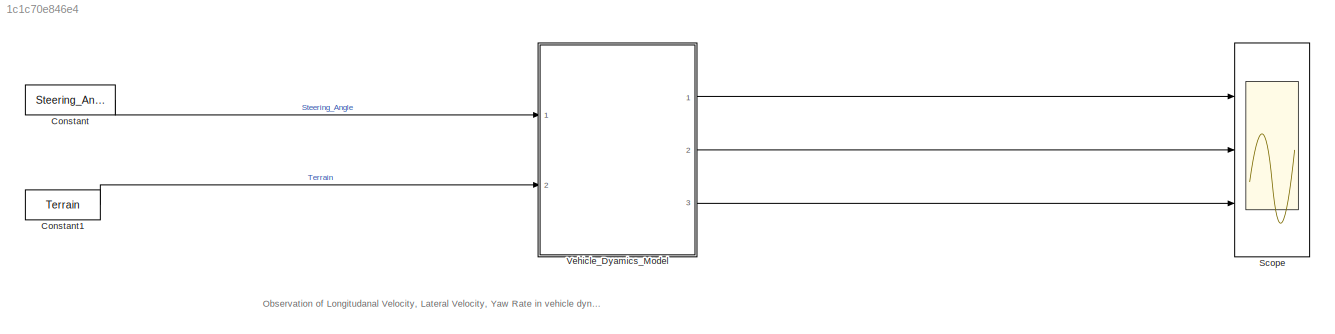
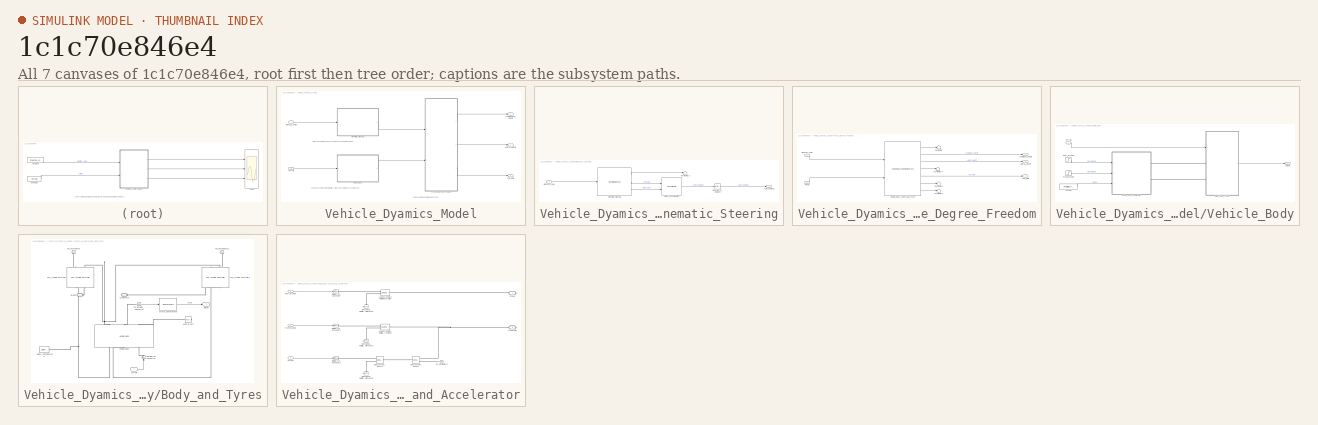
[diagram: thumbnail index - all 7 canvases of the model, root first then tree order]
MODEL slx_1c1c70e846e4
KIND model
CONFIG AbsTol = auto
CONFIG EnableMultiTasking = off
CONFIG FixedStep = 0.01
CONFIG MaxStep = auto
CONFIG MinStep = auto
CONFIG RelTol = 1e-3
CONFIG SampleTimeConstraint = Unconstrained
CONFIG Solver = FixedStepAuto
CONFIG SolverName = FixedStepAuto
CONFIG StartTime = 0.0
CONFIG StopTime = 300
BLOCK [Constant] Constant
  OutDataTypeStr = double
  Value = Steering_Angle
BLOCK [Constant] Constant1
  OutDataTypeStr = double
  Value = Terrain
BLOCK [Scope] Scope
  Floating = off
  NumInputPorts = 3
  Ports = [3]
  ScopeSpecificationString = Simulink.scopes.TimeScopeBlockCfg('CurrentConfiguration', extmgr.ConfigurationSet(extmgr.Configuration('Core','General UI',true),extmgr.Configuration('Core','Source UI',true),extmgr.Configuration('Sources','WiredSimulink',true),extmgr.Configuration('Visuals','Time Domain',true,'SerializedDisplays',{struct('MinYLimReal','-0.56867','MaxYLimReal','5.11802','YLabelReal','','MinYLimMag','0.00000','MaxY...<+2758ch>
BLOCK [SubSystem] Vehicle_Dyamics_Model
  Ports = [2, 3]
  RequestExecContextInheritance = off
  TreatAsAtomicUnit = on
BLOCK [SubSystem] Vehicle_Dyamics_Model/Kinematic_Steering
  Ports = [1, 1]
  RequestExecContextInheritance = off
BLOCK [Outport] Vehicle_Dyamics_Model/Kinematic_Steering/Angle_Radians
  IconDisplay = Port number
BLOCK [Reference] Vehicle_Dyamics_Model/Kinematic_Steering/Degrees_to_Radians  REF=simulink_extras/Transformations/Degrees to
Radians
  Ports = [1, 1]
  SourceBlock = simulink_extras/Transformations/Degrees to\nRadians
  SourceProductBaseCode = SL
  SourceProductName = Simulink
  SourceType = DegreesToRadians
BLOCK [Reference] Vehicle_Dyamics_Model/Kinematic_Steering/Kinematic_Steering  REF=vehdynlibsteering/Kinematic Steering
  Ports = [1, 3]
  SourceBlock = vehdynlibsteering/Kinematic Steering
  SourceProductBaseCode = VE
  SourceProductName = Vehicle Dynamics Blockset
  SourceType = Kinematic Steering
BLOCK [Concatenate] Vehicle_Dyamics_Model/Kinematic_Steering/Matrix_Concatenate1
  AttributesFormatString = %<ConcatenateDimension>
  ConcatenateDimension = 2
  Ports = [2, 1]
BLOCK [Inport] Vehicle_Dyamics_Model/Kinematic_Steering/Steering_Angle
  IconDisplay = Port number
BLOCK [Terminator] Vehicle_Dyamics_Model/Kinematic_Steering/Terminator3
BLOCK [Outport] Vehicle_Dyamics_Model/Lateral_Velocity
  IconDisplay = Port number
  Port = 2
BLOCK [Outport] Vehicle_Dyamics_Model/Longitudanal_Velocity
  IconDisplay = Port number
BLOCK [Inport] Vehicle_Dyamics_Model/Steering_Angle
  IconDisplay = Port number
BLOCK [Inport] Vehicle_Dyamics_Model/Terrain
  IconDisplay = Port number
  OutDataTypeStr = double
  Port = 2
BLOCK [SubSystem] Vehicle_Dyamics_Model/Three_Degree_Freedom
  Ports = [2, 3]
  RequestExecContextInheritance = off
BLOCK [Outport] Vehicle_Dyamics_Model/Three_Degree_Freedom/Lateral_Velocity
  IconDisplay = Port number
  Port = 2
BLOCK [Outport] Vehicle_Dyamics_Model/Three_Degree_Freedom/Longitudal_Velocity
  IconDisplay = Port number
BLOCK [Inport] Vehicle_Dyamics_Model/Three_Degree_Freedom/Steering_Angle
  IconDisplay = Port number
BLOCK [Terminator] Vehicle_Dyamics_Model/Three_Degree_Freedom/Terminator
BLOCK [Terminator] Vehicle_Dyamics_Model/Three_Degree_Freedom/Terminator1
BLOCK [Terminator] Vehicle_Dyamics_Model/Three_Degree_Freedom/Terminator2
BLOCK [Terminator] Vehicle_Dyamics_Model/Three_Degree_Freedom/Terminator4
BLOCK [Reference] Vehicle_Dyamics_Model/Three_Degree_Freedom/Vehicle_Body_3DOF_Dual_Track  REF=autolibshared/Vehicle Body 3DOF Single Track
  Ports = [2, 7]
  SourceBlock = autolibshared/Vehicle Body 3DOF Single Track
  SourceProductBaseCode = PW
  SourceProductName = Powertrain Blockset
  SourceType = Vehicle Body 3DOF Lateral
BLOCK [Inport] Vehicle_Dyamics_Model/Three_Degree_Freedom/Velocity
  IconDisplay = Port number
  Port = 2
BLOCK [Outport] Vehicle_Dyamics_Model/Three_Degree_Freedom/Yaw_Rate
  IconDisplay = Port number
  Port = 3
BLOCK [SubSystem] Vehicle_Dyamics_Model/Vehicle_Body
  Ports = [1, 1]
  RequestExecContextInheritance = off
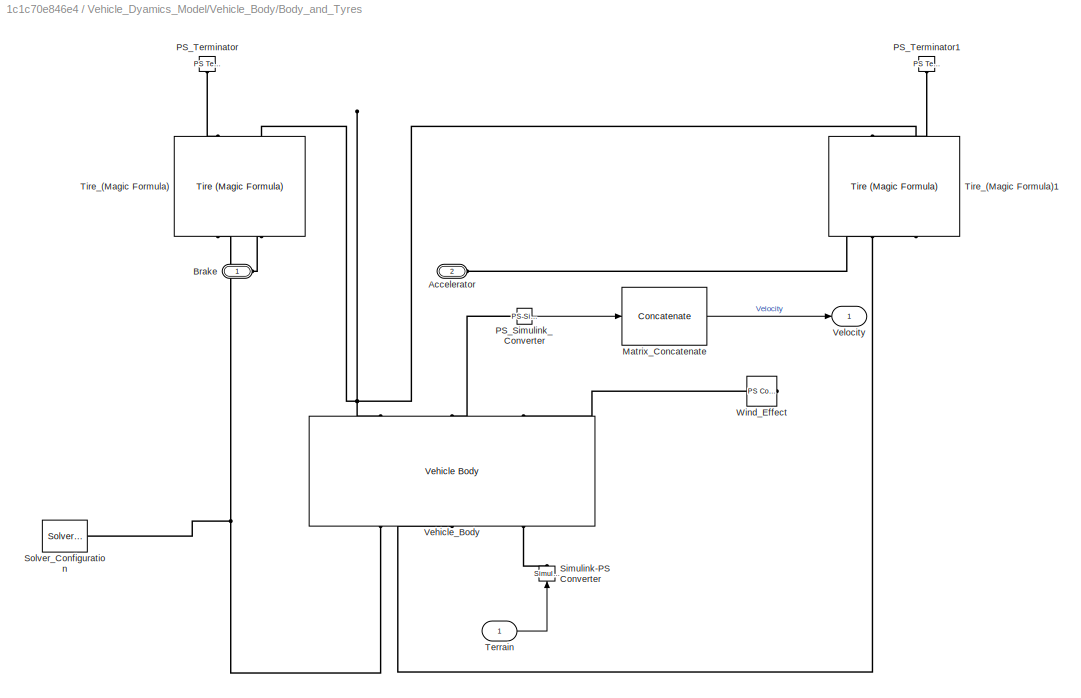
BLOCK [SubSystem] Vehicle_Dyamics_Model/Vehicle_Body/Body_and_Tyres
  Ports = [1, 1, 0, 0, 0, 2]
  RequestExecContextInheritance = off
BLOCK [PMIOPort] Vehicle_Dyamics_Model/Vehicle_Body/Body_and_Tyres/Accelerator
  Port = 2
  Side = Left
BLOCK [PMIOPort] Vehicle_Dyamics_Model/Vehicle_Body/Body_and_Tyres/Brake
  Side = Left
BLOCK [Concatenate] Vehicle_Dyamics_Model/Vehicle_Body/Body_and_Tyres/Matrix_Concatenate
  AttributesFormatString = %<ConcatenateDimension>
  ConcatenateDimension = 2
  NumInputs = 1
  Ports = [1, 1]
BLOCK [Reference] Vehicle_Dyamics_Model/Vehicle_Body/Body_and_Tyres/PS_Simulink_Converter  REF=nesl_utility/PS-Simulink
Converter
  Ports = [0, 1, 0, 0, 0, 1]
  SourceBlock = nesl_utility/PS-Simulink\nConverter
  SourceProductBaseCode = SS
  SourceProductName = Simscape
  SourceType = PS-Simulink\nConverter
BLOCK [Reference] Vehicle_Dyamics_Model/Vehicle_Body/Body_and_Tyres/PS_Terminator  REF=fl_lib/Physical Signals/Sinks/PS Terminator
  Ports = [0, 0, 0, 0, 0, 1]
  SourceBlock = fl_lib/Physical Signals/Sinks/PS Terminator
  SourceProductBaseCode = SS
  SourceProductName = Simscape
  SourceType = PS Terminator
BLOCK [Reference] Vehicle_Dyamics_Model/Vehicle_Body/Body_and_Tyres/PS_Terminator1  REF=fl_lib/Physical Signals/Sinks/PS Terminator
  Ports = [0, 0, 0, 0, 0, 1]
  SourceBlock = fl_lib/Physical Signals/Sinks/PS Terminator
  SourceProductBaseCode = SS
  SourceProductName = Simscape
  SourceType = PS Terminator
BLOCK [Reference] Vehicle_Dyamics_Model/Vehicle_Body/Body_and_Tyres/Simulink-PS Converter  REF=nesl_utility/Simulink-PS
Converter
  Ports = [1, 0, 0, 0, 0, 0, 1]
  SourceBlock = nesl_utility/Simulink-PS\nConverter
  SourceProductBaseCode = SS
  SourceProductName = Simscape
  SourceType = Simulink-PS\nConverter
BLOCK [Reference] Vehicle_Dyamics_Model/Vehicle_Body/Body_and_Tyres/Solver_Configuration  REF=nesl_utility/Solver
Configuration
  Ports = [0, 0, 0, 0, 0, 0, 1]
  SourceBlock = nesl_utility/Solver\nConfiguration
  SourceProductBaseCode = SS
  SourceProductName = Simscape
  SourceType = Solver\nConfiguration
BLOCK [Inport] Vehicle_Dyamics_Model/Vehicle_Body/Body_and_Tyres/Terrain
  IconDisplay = Port number
BLOCK [Reference] Vehicle_Dyamics_Model/Vehicle_Body/Body_and_Tyres/Tire_(Magic Formula)  REF=sdl_lib/Tires & Vehicles/Tire (Magic Formula)
  Ports = [0, 0, 0, 0, 0, 2, 2]
  SourceBlock = sdl_lib/Tires & Vehicles/Tire (Magic Formula)
  SourceProductBaseCode = LD
  SourceProductName = Simscape Driveline
  SourceType = Tire (Magic Formula)
BLOCK [Reference] Vehicle_Dyamics_Model/Vehicle_Body/Body_and_Tyres/Tire_(Magic Formula)1  REF=sdl_lib/Tires & Vehicles/Tire (Magic Formula)
  Ports = [0, 0, 0, 0, 0, 2, 2]
  SourceBlock = sdl_lib/Tires & Vehicles/Tire (Magic Formula)
  SourceProductBaseCode = LD
  SourceProductName = Simscape Driveline
  SourceType = Tire (Magic Formula)
BLOCK [Reference] Vehicle_Dyamics_Model/Vehicle_Body/Body_and_Tyres/Vehicle_Body  REF=sdl_lib/Tires & Vehicles/Vehicle Body
  Ports = [0, 0, 0, 0, 0, 3, 3]
  SourceBlock = sdl_lib/Tires & Vehicles/Vehicle Body
  SourceProductBaseCode = LD
  SourceProductName = Simscape Driveline
  SourceType = Vehicle Body
BLOCK [Outport] Vehicle_Dyamics_Model/Vehicle_Body/Body_and_Tyres/Velocity
  IconDisplay = Port number
BLOCK [Reference] Vehicle_Dyamics_Model/Vehicle_Body/Body_and_Tyres/Wind_Effect  REF=fl_lib/Physical Signals/Sources/PS Constant
  Ports = [0, 0, 0, 0, 0, 0, 1]
  SourceBlock = fl_lib/Physical Signals/Sources/PS Constant
  SourceProductBaseCode = SS
  SourceProductName = Simscape
  SourceType = PS Constant
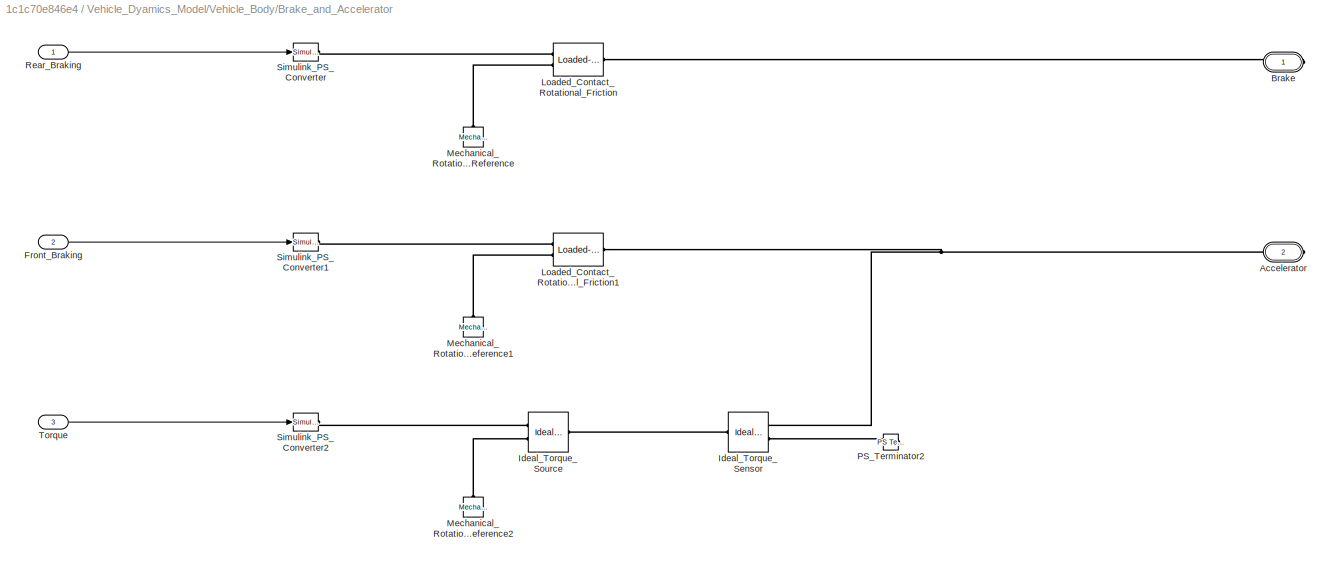
BLOCK [SubSystem] Vehicle_Dyamics_Model/Vehicle_Body/Brake_and_Accelerator
  Ports = [3, 0, 0, 0, 0, 0, 2]
  RequestExecContextInheritance = off
BLOCK [PMIOPort] Vehicle_Dyamics_Model/Vehicle_Body/Brake_and_Accelerator/Accelerator
  Port = 2
  Side = Right
BLOCK [PMIOPort] Vehicle_Dyamics_Model/Vehicle_Body/Brake_and_Accelerator/Brake
  Side = Right
BLOCK [Inport] Vehicle_Dyamics_Model/Vehicle_Body/Brake_and_Accelerator/Front_Braking
  IconDisplay = Port number
  Port = 2
BLOCK [Reference] Vehicle_Dyamics_Model/Vehicle_Body/Brake_and_Accelerator/Ideal_Torque_Sensor  REF=fl_lib/Mechanical/Mechanical Sensors/Ideal Torque Sensor
  Ports = [0, 0, 0, 0, 0, 1, 2]
  SourceBlock = fl_lib/Mechanical/Mechanical Sensors/Ideal Torque Sensor
  SourceProductBaseCode = SS
  SourceProductName = Simscape
  SourceType = Ideal Torque Sensor
BLOCK [Reference] Vehicle_Dyamics_Model/Vehicle_Body/Brake_and_Accelerator/Ideal_Torque_Source  REF=fl_lib/Mechanical/Mechanical Sources/Ideal Torque Source
  Ports = [0, 0, 0, 0, 0, 1, 2]
  SourceBlock = fl_lib/Mechanical/Mechanical Sources/Ideal Torque Source
  SourceProductBaseCode = SS
  SourceProductName = Simscape
  SourceType = Ideal Torque Source
BLOCK [Reference] Vehicle_Dyamics_Model/Vehicle_Body/Brake_and_Accelerator/Loaded_Contact_Rotational_Friction  REF=sdl_lib/Brakes & Detents/Rotational/Loaded-Contact
Rotational Friction
  Ports = [0, 0, 0, 0, 0, 2, 1]
  SourceBlock = sdl_lib/Brakes & Detents/Rotational/Loaded-Contact\nRotational Friction
  SourceProductBaseCode = LD
  SourceProductName = Simscape Driveline
  SourceType = Loaded-Contact\nRotational Friction
BLOCK [Reference] Vehicle_Dyamics_Model/Vehicle_Body/Brake_and_Accelerator/Loaded_Contact_Rotational_Friction1  REF=sdl_lib/Brakes & Detents/Rotational/Loaded-Contact
Rotational Friction
  Ports = [0, 0, 0, 0, 0, 2, 1]
  SourceBlock = sdl_lib/Brakes & Detents/Rotational/Loaded-Contact\nRotational Friction
  SourceProductBaseCode = LD
  SourceProductName = Simscape Driveline
  SourceType = Loaded-Contact\nRotational Friction
BLOCK [Reference] Vehicle_Dyamics_Model/Vehicle_Body/Brake_and_Accelerator/Mechanical_Rotational_Reference  REF=fl_lib/Mechanical/Rotational Elements/Mechanical
Rotational Reference
  Ports = [0, 0, 0, 0, 0, 1]
  SourceBlock = fl_lib/Mechanical/Rotational Elements/Mechanical\nRotational Reference
  SourceProductBaseCode = SS
  SourceProductName = Simscape
  SourceType = Mechanical\nRotational Reference
BLOCK [Reference] Vehicle_Dyamics_Model/Vehicle_Body/Brake_and_Accelerator/Mechanical_Rotational_Reference1  REF=fl_lib/Mechanical/Rotational Elements/Mechanical
Rotational Reference
  Ports = [0, 0, 0, 0, 0, 1]
  SourceBlock = fl_lib/Mechanical/Rotational Elements/Mechanical\nRotational Reference
  SourceProductBaseCode = SS
  SourceProductName = Simscape
  SourceType = Mechanical\nRotational Reference
BLOCK [Reference] Vehicle_Dyamics_Model/Vehicle_Body/Brake_and_Accelerator/Mechanical_Rotational_Reference2  REF=fl_lib/Mechanical/Rotational Elements/Mechanical
Rotational Reference
  Ports = [0, 0, 0, 0, 0, 1]
  SourceBlock = fl_lib/Mechanical/Rotational Elements/Mechanical\nRotational Reference
  SourceProductBaseCode = SS
  SourceProductName = Simscape
  SourceType = Mechanical\nRotational Reference
BLOCK [Reference] Vehicle_Dyamics_Model/Vehicle_Body/Brake_and_Accelerator/PS_Terminator2  REF=fl_lib/Physical Signals/Sinks/PS Terminator
  Ports = [0, 0, 0, 0, 0, 1]
  SourceBlock = fl_lib/Physical Signals/Sinks/PS Terminator
  SourceProductBaseCode = SS
  SourceProductName = Simscape
  SourceType = PS Terminator
BLOCK [Inport] Vehicle_Dyamics_Model/Vehicle_Body/Brake_and_Accelerator/Rear_Braking
  IconDisplay = Port number
BLOCK [Reference] Vehicle_Dyamics_Model/Vehicle_Body/Brake_and_Accelerator/Simulink_PS_Converter  REF=nesl_utility/Simulink-PS
Converter
  Ports = [1, 0, 0, 0, 0, 0, 1]
  SourceBlock = nesl_utility/Simulink-PS\nConverter
  SourceProductBaseCode = SS
  SourceProductName = Simscape
  SourceType = Simulink-PS\nConverter
BLOCK [Reference] Vehicle_Dyamics_Model/Vehicle_Body/Brake_and_Accelerator/Simulink_PS_Converter1  REF=nesl_utility/Simulink-PS
Converter
  Ports = [1, 0, 0, 0, 0, 0, 1]
  SourceBlock = nesl_utility/Simulink-PS\nConverter
  SourceProductBaseCode = SS
  SourceProductName = Simscape
  SourceType = Simulink-PS\nConverter
BLOCK [Reference] Vehicle_Dyamics_Model/Vehicle_Body/Brake_and_Accelerator/Simulink_PS_Converter2  REF=nesl_utility/Simulink-PS
Converter
  Ports = [1, 0, 0, 0, 0, 0, 1]
  SourceBlock = nesl_utility/Simulink-PS\nConverter
  SourceProductBaseCode = SS
  SourceProductName = Simscape
  SourceType = Simulink-PS\nConverter
BLOCK [Inport] Vehicle_Dyamics_Model/Vehicle_Body/Brake_and_Accelerator/Torque
  IconDisplay = Port number
  Port = 3
BLOCK [Step] Vehicle_Dyamics_Model/Vehicle_Body/Front_Braking
  After = Terrain
  SampleTime = 0
  Time = 100
BLOCK [Step] Vehicle_Dyamics_Model/Vehicle_Body/Rear_Braking
  After = Braking
  SampleTime = 0
  Time = 100
BLOCK [Inport] Vehicle_Dyamics_Model/Vehicle_Body/Terrain
  IconDisplay = Port number
  OutDataTypeStr = double
BLOCK [Constant] Vehicle_Dyamics_Model/Vehicle_Body/Torque
  Value = Pedalling_Force
BLOCK [Outport] Vehicle_Dyamics_Model/Vehicle_Body/Velocity
  IconDisplay = Port number
BLOCK [Outport] Vehicle_Dyamics_Model/Yaw_Rate
  IconDisplay = Port number
  Port = 3
ANNOTATION (root): Observation of Longitudanal Velocity, Lateral Velocity, Yaw Rate in vehicle dynamics
ANNOTATION Vehicle_Dyamics_Model: 3 degree of freedom is take in account
ANNOTATION Vehicle_Dyamics_Model: Steering angle is taken in account and converted into radians
ANNOTATION Vehicle_Dyamics_Model: Various parmeters like weight, terrain, tyre parametes are considered
LINE Constant1:1 -> Vehicle_Dyamics_Model:2
LINE Constant:1 -> Vehicle_Dyamics_Model:1
LINE Vehicle_Dyamics_Model/Kinematic_Steering/Degrees_to_Radians:1 -> Vehicle_Dyamics_Model/Kinematic_Steering/Angle_Radians:1
LINE Vehicle_Dyamics_Model/Kinematic_Steering/Kinematic_Steering:1 -> Vehicle_Dyamics_Model/Kinematic_Steering/Terminator3:1
LINE Vehicle_Dyamics_Model/Kinematic_Steering/Kinematic_Steering:2 -> Vehicle_Dyamics_Model/Kinematic_Steering/Matrix_Concatenate1:1
LINE Vehicle_Dyamics_Model/Kinematic_Steering/Kinematic_Steering:3 -> Vehicle_Dyamics_Model/Kinematic_Steering/Matrix_Concatenate1:2
LINE Vehicle_Dyamics_Model/Kinematic_Steering/Matrix_Concatenate1:1 -> Vehicle_Dyamics_Model/Kinematic_Steering/Degrees_to_Radians:1
LINE Vehicle_Dyamics_Model/Kinematic_Steering/Steering_Angle:1 -> Vehicle_Dyamics_Model/Kinematic_Steering/Kinematic_Steering:1
LINE Vehicle_Dyamics_Model/Kinematic_Steering:1 -> Vehicle_Dyamics_Model/Three_Degree_Freedom:1
LINE Vehicle_Dyamics_Model/Steering_Angle:1 -> Vehicle_Dyamics_Model/Kinematic_Steering:1
LINE Vehicle_Dyamics_Model/Terrain:1 -> Vehicle_Dyamics_Model/Vehicle_Body:1
LINE Vehicle_Dyamics_Model/Three_Degree_Freedom/Steering_Angle:1 -> Vehicle_Dyamics_Model/Three_Degree_Freedom/Vehicle_Body_3DOF_Dual_Track:1
LINE Vehicle_Dyamics_Model/Three_Degree_Freedom/Vehicle_Body_3DOF_Dual_Track:1 -> Vehicle_Dyamics_Model/Three_Degree_Freedom/Terminator:1
LINE Vehicle_Dyamics_Model/Three_Degree_Freedom/Vehicle_Body_3DOF_Dual_Track:2 -> Vehicle_Dyamics_Model/Three_Degree_Freedom/Longitudal_Velocity:1
LINE Vehicle_Dyamics_Model/Three_Degree_Freedom/Vehicle_Body_3DOF_Dual_Track:3 -> Vehicle_Dyamics_Model/Three_Degree_Freedom/Lateral_Velocity:1
LINE Vehicle_Dyamics_Model/Three_Degree_Freedom/Vehicle_Body_3DOF_Dual_Track:4 -> Vehicle_Dyamics_Model/Three_Degree_Freedom/Terminator4:1
LINE Vehicle_Dyamics_Model/Three_Degree_Freedom/Vehicle_Body_3DOF_Dual_Track:5 -> Vehicle_Dyamics_Model/Three_Degree_Freedom/Yaw_Rate:1
LINE Vehicle_Dyamics_Model/Three_Degree_Freedom/Vehicle_Body_3DOF_Dual_Track:6 -> Vehicle_Dyamics_Model/Three_Degree_Freedom/Terminator1:1
LINE Vehicle_Dyamics_Model/Three_Degree_Freedom/Vehicle_Body_3DOF_Dual_Track:7 -> Vehicle_Dyamics_Model/Three_Degree_Freedom/Terminator2:1
LINE Vehicle_Dyamics_Model/Three_Degree_Freedom/Velocity:1 -> Vehicle_Dyamics_Model/Three_Degree_Freedom/Vehicle_Body_3DOF_Dual_Track:2
LINE Vehicle_Dyamics_Model/Three_Degree_Freedom:1 -> Vehicle_Dyamics_Model/Longitudanal_Velocity:1
LINE Vehicle_Dyamics_Model/Three_Degree_Freedom:2 -> Vehicle_Dyamics_Model/Lateral_Velocity:1
LINE Vehicle_Dyamics_Model/Three_Degree_Freedom:3 -> Vehicle_Dyamics_Model/Yaw_Rate:1
LINE Vehicle_Dyamics_Model/Vehicle_Body/Body_and_Tyres/Matrix_Concatenate:1 -> Vehicle_Dyamics_Model/Vehicle_Body/Body_and_Tyres/Velocity:1
LINE Vehicle_Dyamics_Model/Vehicle_Body/Body_and_Tyres/PS_Simulink_Converter:1 -> Vehicle_Dyamics_Model/Vehicle_Body/Body_and_Tyres/Matrix_Concatenate:1
LINE Vehicle_Dyamics_Model/Vehicle_Body/Body_and_Tyres/Terrain:1 -> Vehicle_Dyamics_Model/Vehicle_Body/Body_and_Tyres/Simulink-PS Converter:1
LINE Vehicle_Dyamics_Model/Vehicle_Body/Body_and_Tyres:1 -> Vehicle_Dyamics_Model/Vehicle_Body/Velocity:1
LINE Vehicle_Dyamics_Model/Vehicle_Body/Brake_and_Accelerator/Front_Braking:1 -> Vehicle_Dyamics_Model/Vehicle_Body/Brake_and_Accelerator/Simulink_PS_Converter1:1
LINE Vehicle_Dyamics_Model/Vehicle_Body/Brake_and_Accelerator/Rear_Braking:1 -> Vehicle_Dyamics_Model/Vehicle_Body/Brake_and_Accelerator/Simulink_PS_Converter:1
LINE Vehicle_Dyamics_Model/Vehicle_Body/Brake_and_Accelerator/Torque:1 -> Vehicle_Dyamics_Model/Vehicle_Body/Brake_and_Accelerator/Simulink_PS_Converter2:1
LINE Vehicle_Dyamics_Model/Vehicle_Body/Front_Braking:1 -> Vehicle_Dyamics_Model/Vehicle_Body/Brake_and_Accelerator:2
LINE Vehicle_Dyamics_Model/Vehicle_Body/Rear_Braking:1 -> Vehicle_Dyamics_Model/Vehicle_Body/Brake_and_Accelerator:1
LINE Vehicle_Dyamics_Model/Vehicle_Body/Terrain:1 -> Vehicle_Dyamics_Model/Vehicle_Body/Body_and_Tyres:1
LINE Vehicle_Dyamics_Model/Vehicle_Body/Torque:1 -> Vehicle_Dyamics_Model/Vehicle_Body/Brake_and_Accelerator:3
LINE Vehicle_Dyamics_Model/Vehicle_Body:1 -> Vehicle_Dyamics_Model/Three_Degree_Freedom:2
LINE Vehicle_Dyamics_Model:1 -> Scope:1
LINE Vehicle_Dyamics_Model:2 -> Scope:2
LINE Vehicle_Dyamics_Model:3 -> Scope:3
PLINE Vehicle_Dyamics_Model/Vehicle_Body/Body_and_Tyres/Accelerator:RConn1 -- Vehicle_Dyamics_Model/Vehicle_Body/Body_and_Tyres/Tire_(Magic Formula)1:LConn2
PLINE Vehicle_Dyamics_Model/Vehicle_Body/Body_and_Tyres/Brake:RConn1 -- Vehicle_Dyamics_Model/Vehicle_Body/Body_and_Tyres/Tire_(Magic Formula):LConn2
PLINE Vehicle_Dyamics_Model/Vehicle_Body/Body_and_Tyres/PS_Simulink_Converter:LConn1 -- Vehicle_Dyamics_Model/Vehicle_Body/Body_and_Tyres/Vehicle_Body:LConn2
PLINE Vehicle_Dyamics_Model/Vehicle_Body/Body_and_Tyres/PS_Terminator1:LConn1 -- Vehicle_Dyamics_Model/Vehicle_Body/Body_and_Tyres/Tire_(Magic Formula)1:RConn1
PLINE Vehicle_Dyamics_Model/Vehicle_Body/Body_and_Tyres/PS_Terminator:LConn1 -- Vehicle_Dyamics_Model/Vehicle_Body/Body_and_Tyres/Tire_(Magic Formula):RConn1
PLINE Vehicle_Dyamics_Model/Vehicle_Body/Body_and_Tyres/Simulink-PS Converter:RConn1 -- Vehicle_Dyamics_Model/Vehicle_Body/Body_and_Tyres/Vehicle_Body:RConn3
PNET net1: Vehicle_Dyamics_Model/Vehicle_Body/Body_and_Tyres/Solver_Configuration:RConn1 -- Vehicle_Dyamics_Model/Vehicle_Body/Body_and_Tyres/Tire_(Magic Formula):LConn1 -- Vehicle_Dyamics_Model/Vehicle_Body/Body_and_Tyres/Vehicle_Body:RConn1
PLINE Vehicle_Dyamics_Model/Vehicle_Body/Body_and_Tyres/Tire_(Magic Formula)1:LConn1 -- Vehicle_Dyamics_Model/Vehicle_Body/Body_and_Tyres/Vehicle_Body:RConn2
PNET net2: Vehicle_Dyamics_Model/Vehicle_Body/Body_and_Tyres/Tire_(Magic Formula)1:RConn2 -- Vehicle_Dyamics_Model/Vehicle_Body/Body_and_Tyres/Tire_(Magic Formula):RConn2 -- Vehicle_Dyamics_Model/Vehicle_Body/Body_and_Tyres/Vehicle_Body:LConn1
PLINE Vehicle_Dyamics_Model/Vehicle_Body/Body_and_Tyres/Vehicle_Body:LConn3 -- Vehicle_Dyamics_Model/Vehicle_Body/Body_and_Tyres/Wind_Effect:RConn1
PLINE Vehicle_Dyamics_Model/Vehicle_Body/Body_and_Tyres:LConn1 -- Vehicle_Dyamics_Model/Vehicle_Body/Brake_and_Accelerator:RConn1
PLINE Vehicle_Dyamics_Model/Vehicle_Body/Body_and_Tyres:LConn2 -- Vehicle_Dyamics_Model/Vehicle_Body/Brake_and_Accelerator:RConn2
PNET net3: Vehicle_Dyamics_Model/Vehicle_Body/Brake_and_Accelerator/Accelerator:RConn1 -- Vehicle_Dyamics_Model/Vehicle_Body/Brake_and_Accelerator/Ideal_Torque_Sensor:RConn1 -- Vehicle_Dyamics_Model/Vehicle_Body/Brake_and_Accelerator/Loaded_Contact_Rotational_Friction1:RConn1
PLINE Vehicle_Dyamics_Model/Vehicle_Body/Brake_and_Accelerator/Brake:RConn1 -- Vehicle_Dyamics_Model/Vehicle_Body/Brake_and_Accelerator/Loaded_Contact_Rotational_Friction:RConn1
PLINE Vehicle_Dyamics_Model/Vehicle_Body/Brake_and_Accelerator/Ideal_Torque_Sensor:LConn1 -- Vehicle_Dyamics_Model/Vehicle_Body/Brake_and_Accelerator/Ideal_Torque_Source:LConn1
PLINE Vehicle_Dyamics_Model/Vehicle_Body/Brake_and_Accelerator/Ideal_Torque_Sensor:RConn2 -- Vehicle_Dyamics_Model/Vehicle_Body/Brake_and_Accelerator/PS_Terminator2:LConn1
PLINE Vehicle_Dyamics_Model/Vehicle_Body/Brake_and_Accelerator/Ideal_Torque_Source:RConn1 -- Vehicle_Dyamics_Model/Vehicle_Body/Brake_and_Accelerator/Simulink_PS_Converter2:RConn1
PLINE Vehicle_Dyamics_Model/Vehicle_Body/Brake_and_Accelerator/Ideal_Torque_Source:RConn2 -- Vehicle_Dyamics_Model/Vehicle_Body/Brake_and_Accelerator/Mechanical_Rotational_Reference2:LConn1
PLINE Vehicle_Dyamics_Model/Vehicle_Body/Brake_and_Accelerator/Loaded_Contact_Rotational_Friction1:LConn1 -- Vehicle_Dyamics_Model/Vehicle_Body/Brake_and_Accelerator/Simulink_PS_Converter1:RConn1
PLINE Vehicle_Dyamics_Model/Vehicle_Body/Brake_and_Accelerator/Loaded_Contact_Rotational_Friction1:LConn2 -- Vehicle_Dyamics_Model/Vehicle_Body/Brake_and_Accelerator/Mechanical_Rotational_Reference1:LConn1
PLINE Vehicle_Dyamics_Model/Vehicle_Body/Brake_and_Accelerator/Loaded_Contact_Rotational_Friction:LConn1 -- Vehicle_Dyamics_Model/Vehicle_Body/Brake_and_Accelerator/Simulink_PS_Converter:RConn1
PLINE Vehicle_Dyamics_Model/Vehicle_Body/Brake_and_Accelerator/Loaded_Contact_Rotational_Friction:LConn2 -- Vehicle_Dyamics_Model/Vehicle_Body/Brake_and_Accelerator/Mechanical_Rotational_Reference:LConn1
note: PNET lines group multi-terminal physical nets as a canonical sorted terminal list (undirected conserving connections); 2-terminal nets keep the pairwise PLINE form
